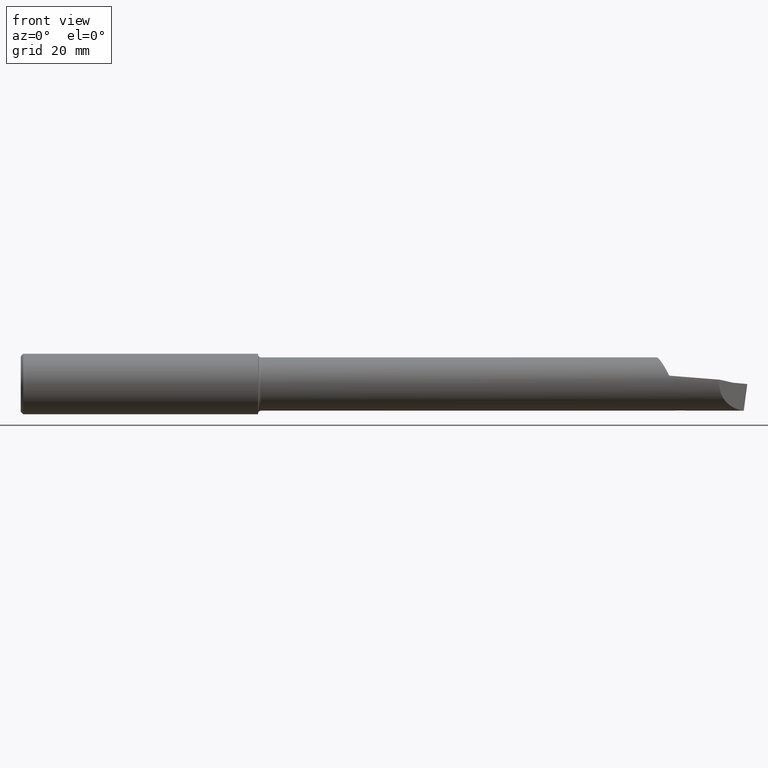
[diagram: clean part render]
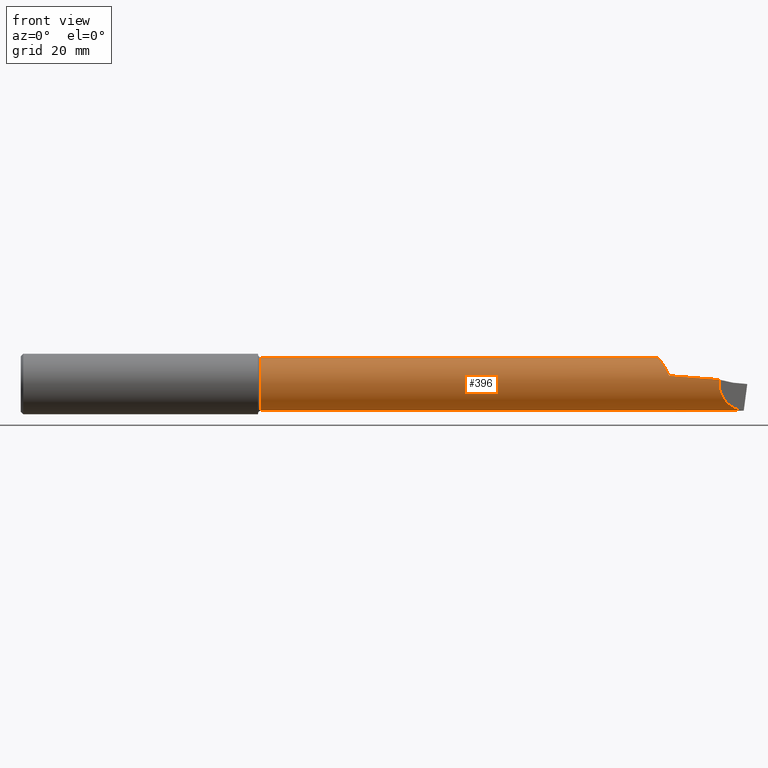
[diagram: same view with one face highlighted and labeled with its STEP entity id]
A machine part, front view. The second image highlights one B-rep face of the part: STEP entity #396.
In plain terms, the highlighted cylindrical surface (edge-blend (fillet) strip) has radius 5.588 mm, axis along (-1, -0, -0).
Its self-contained STEP definition (entity closure, byte-faithful):
#1 = EDGE_LOOP ( 'NONE', ( #563, #59, #292, #338, #590, #301, #452, #726, #315, #474 ) ) ;
#4 = EDGE_CURVE ( 'NONE', #483, #6, #501, .T. ) ;
#6 = VERTEX_POINT ( 'NONE', #314 ) ;
#10 = CARTESIAN_POINT ( 'NONE',  ( 5.771270714435558169, -0.2170814383730695907, 0.03571623039850650716 ) ) ;
#27 = CARTESIAN_POINT ( 'NONE',  ( 5.970822649411938521, -0.01752950339668959273, -0.2193005164395778750 ) ) ;
#30 = CARTESIAN_POINT ( 'NONE',  ( 5.272414265991219651, -0.07762841386096502871, 0.2061942163186600840 ) ) ;
#31 = VERTEX_POINT ( 'NONE', #497 ) ;
#59 = ORIENTED_EDGE ( 'NONE', *, *, #449, .T. ) ;
#63 = LINE ( 'NONE', #363, #92 ) ;
#68 = LINE ( 'NONE', #709, #451 ) ;
#69 = VECTOR ( 'NONE', #132, 39.37007874015748143 ) ;
#79 = VERTEX_POINT ( 'NONE', #610 ) ;
#84 = CARTESIAN_POINT ( 'NONE',  ( 5.970889738018302140, 0.000000000000000000, -0.2200000000000000566 ) ) ;
#88 = CARTESIAN_POINT ( 'NONE',  ( 5.310708596583527452, -0.1601832435777479635, 0.1525009408925927790 ) ) ;
#92 = VECTOR ( 'NONE', #328, 39.37007874015748143 ) ;
#123 = AXIS2_PLACEMENT_3D ( 'NONE', #594, #476, #473 ) ;
#132 = DIRECTION ( 'NONE',  ( 1.000000000000000000, -0.000000000000000000, -0.000000000000000000 ) ) ;
#184 = VERTEX_POINT ( 'NONE', #581 ) ;
#197 = DIRECTION ( 'NONE',  ( -1.000000000000000000, -0.000000000000000000, -0.000000000000000000 ) ) ;
#200 = CARTESIAN_POINT ( 'NONE',  ( 5.292376002346411035, -0.1261431576479110639, 0.1802597226350352022 ) ) ;
#202 = CARTESIAN_POINT ( 'NONE',  ( 5.356559098504063421, -0.2088777642239236787, 0.06906576061805669298 ) ) ;
#205 = CARTESIAN_POINT ( 'NONE',  ( 5.970822649411938521, -0.01752950339668959273, -0.2193005164395778750 ) ) ;
#209 = CARTESIAN_POINT ( 'NONE',  ( 5.301763750540529507, -0.1449087477148439662, 0.1665523849273789492 ) ) ;
#212 = CARTESIAN_POINT ( 'NONE',  ( 1.984525038226270466, 0.000000000000000000, 0.000000000000000000 ) ) ;
#223 = CARTESIAN_POINT ( 'NONE',  ( 5.410000000000000142, 2.694222958124177253E-17, -0.2200000000000000011 ) ) ;
#246 = CYLINDRICAL_SURFACE ( 'NONE', #123, 0.2200000000000000566 ) ;
#250 = FACE_OUTER_BOUND ( 'NONE', #1, .T. ) ;
#262 = EDGE_CURVE ( 'NONE', #31, #334, #480, .T. ) ;
#263 = CARTESIAN_POINT ( 'NONE',  ( 5.970838677816553641, -0.005850919593664028091, -0.2200000000000000011 ) ) ;
#265 = CARTESIAN_POINT ( 'NONE',  ( 5.291057892820146158, -0.1233858508182268526, 0.1821426667538900979 ) ) ;
#266 = CARTESIAN_POINT ( 'NONE',  ( 5.358974358974359475, -0.2089406661879938953, 0.06887523512059523512 ) ) ;
#271 = CARTESIAN_POINT ( 'NONE',  ( 5.289661220195152502, -0.1204269891560956207, 0.1841250165428706675 ) ) ;
#292 = ORIENTED_EDGE ( 'NONE', *, *, #319, .T. ) ;
#293 = CARTESIAN_POINT ( 'NONE',  ( 5.253048836201133831, -1.183062825525345383E-06, 0.2200124226379089887 ) ) ;
#295 = VERTEX_POINT ( 'NONE', #223 ) ;
#301 = ORIENTED_EDGE ( 'NONE', *, *, #506, .F. ) ;
#304 = DIRECTION ( 'NONE',  ( 0.000000000000000000, 0.000000000000000000, 1.000000000000000000 ) ) ;
#310 = CARTESIAN_POINT ( 'NONE',  ( 5.410000000000000142, 0.000000000000000000, 0.000000000000000000 ) ) ;
#314 = CARTESIAN_POINT ( 'NONE',  ( 5.356559098504063421, -0.2088777642239236787, 0.06906576061805669298 ) ) ;
#315 = ORIENTED_EDGE ( 'NONE', *, *, #442, .T. ) ;
#318 = CARTESIAN_POINT ( 'NONE',  ( 5.564429700643780841, -0.2143015012764733496, 0.05261254719292928622 ) ) ;
#319 = EDGE_CURVE ( 'NONE', #79, #31, #721, .T. ) ;
#320 = CARTESIAN_POINT ( 'NONE',  ( 5.291331261531611929, -0.1239598244847264774, 0.1817528458976670203 ) ) ;
#323 =( BOUNDED_CURVE ( )  B_SPLINE_CURVE ( 3, ( #378, #327, #722, #205 ),
 .UNSPECIFIED., .F., .T. ) 
 B_SPLINE_CURVE_WITH_KNOTS ( ( 4, 4 ),
 ( 6.120117067556848589, 7.774217519258910691 ),
 .UNSPECIFIED. ) 
 CURVE ( )  GEOMETRIC_REPRESENTATION_ITEM ( )  RATIONAL_B_SPLINE_CURVE ( ( 1.000000000000000000, 0.7846997011302683234, 0.7846997011302683234, 1.000000000000000000 ) ) 
 REPRESENTATION_ITEM ( '' )  );
#324 = CARTESIAN_POINT ( 'NONE',  ( 5.343568907379043331, -0.2004185357093110631, 0.09466616758537328702 ) ) ;
#327 = CARTESIAN_POINT ( 'NONE',  ( 5.748939529771278423, -0.2394126230373500863, -0.1000115783150170440 ) ) ;
#328 = DIRECTION ( 'NONE',  ( -1.000000000000000000, -0.000000000000000000, -0.000000000000000000 ) ) ;
#334 = VERTEX_POINT ( 'NONE', #428 ) ;
#338 = ORIENTED_EDGE ( 'NONE', *, *, #262, .T. ) ;
#363 = CARTESIAN_POINT ( 'NONE',  ( 0.000000000000000000, 2.694222958124177561E-17, -0.2200000000000000566 ) ) ;
#378 = CARTESIAN_POINT ( 'NONE',  ( 5.771270714435558169, -0.2170814383730695907, 0.03571623039850650716 ) ) ;
#382 = CARTESIAN_POINT ( 'NONE',  ( 5.286194494552781009, -0.1128910208792994335, 0.1889741111404006357 ) ) ;
#383 = VERTEX_POINT ( 'NONE', #546 ) ;
#387 = B_SPLINE_CURVE_WITH_KNOTS ( 'NONE', 3,
 ( #202, #324, #728, #88, #209, #495, #200, #320, #615, #265, #436, #555, #271, #382, #438, #668, #30, #561, #660, #493 ),
 .UNSPECIFIED., .F., .F.,
 ( 4, 2, 2, 1, 1, 2, 2, 1, 1, 2, 2, 4 ),
 ( 0.000000000000000000, 0.2319181769986998209, 0.4638363539973996419, 0.4928261261222369738, 0.4964498476378415015, 0.4982617083956438209, 0.5000735691534462513, 0.5073210121846650766, 0.5218158982471060581, 0.5797954424968704279, 0.6957545309964027203, 0.9276727079954699695 ),
 .UNSPECIFIED. ) ;
#396 = ADVANCED_FACE ( 'NONE', ( #250 ), #246, .T. ) ;
#401 =( BOUNDED_CURVE ( )  B_SPLINE_CURVE ( 3, ( #27, #609, #263, #84 ),
 .UNSPECIFIED., .F., .F. ) 
 B_SPLINE_CURVE_WITH_KNOTS ( ( 4, 4 ),
 ( 6.274373815428427648, 6.354137930144000634 ),
 .UNSPECIFIED. ) 
 CURVE ( )  GEOMETRIC_REPRESENTATION_ITEM ( )  RATIONAL_B_SPLINE_CURVE ( ( 1.000000000000000000, 0.9994698774393541152, 0.9994698774393541152, 1.000000000000000000 ) ) 
 REPRESENTATION_ITEM ( '' )  );
#428 = CARTESIAN_POINT ( 'NONE',  ( 5.970889738018302140, 0.000000000000000000, -0.2200000000000000566 ) ) ;
#434 = CARTESIAN_POINT ( 'NONE',  ( 5.595439364795532278, 2.134256245050205639E-18, -0.2200000000000000566 ) ) ;
#436 = CARTESIAN_POINT ( 'NONE',  ( 5.291026367974281719, -0.1233195885780081907, 0.1821875986796213653 ) ) ;
#438 = CARTESIAN_POINT ( 'NONE',  ( 5.283226719027450891, -0.1059187799789718248, 0.1929277633858645646 ) ) ;
#442 = EDGE_CURVE ( 'NONE', #669, #383, #68, .T. ) ;
#449 = EDGE_CURVE ( 'NONE', #295, #79, #596, .T. ) ;
#451 = VECTOR ( 'NONE', #197, 39.37007874015748143 ) ;
#452 = ORIENTED_EDGE ( 'NONE', *, *, #4, .T. ) ;
#473 = DIRECTION ( 'NONE',  ( 0.000000000000000000, 0.000000000000000000, 1.000000000000000000 ) ) ;
#474 = ORIENTED_EDGE ( 'NONE', *, *, #496, .F. ) ;
#476 = DIRECTION ( 'NONE',  ( -1.000000000000000000, -0.000000000000000000, -0.000000000000000000 ) ) ;
#477 = EDGE_CURVE ( 'NONE', #295, #184, #63, .T. ) ;
#480 = LINE ( 'NONE', #705, #69 ) ;
#483 = VERTEX_POINT ( 'NONE', #499 ) ;
#486 = EDGE_CURVE ( 'NONE', #6, #669, #387, .T. ) ;
#493 = CARTESIAN_POINT ( 'NONE',  ( 5.253048836201133831, -1.183062825525345383E-06, 0.2200124226379089887 ) ) ;
#495 = CARTESIAN_POINT ( 'NONE',  ( 5.293395547304614368, -0.1282223768002896391, 0.1787856457334581206 ) ) ;
#496 = EDGE_CURVE ( 'NONE', #184, #383, #734, .T. ) ;
#497 = CARTESIAN_POINT ( 'NONE',  ( 5.595439364795532278, 2.134256245050205639E-18, -0.2200000000000000566 ) ) ;
#499 = CARTESIAN_POINT ( 'NONE',  ( 5.771270714435558169, -0.2170814383730695907, 0.03571623039850650716 ) ) ;
#501 =( BOUNDED_CURVE ( )  B_SPLINE_CURVE ( 2, ( #10, #318, #266, #547, #718 ),
 .UNSPECIFIED., .F., .F. ) 
 B_SPLINE_CURVE_WITH_KNOTS ( ( 3, 2, 3 ),
 ( 0.1786485734947638737, 0.5000000000000000000, 0.5019619316750385529 ),
 .UNSPECIFIED. ) 
 CURVE ( )  GEOMETRIC_REPRESENTATION_ITEM ( )  RATIONAL_B_SPLINE_CURVE ( ( 0.9929648280793842430, 0.9916323561610862480, 0.9963010501997406898, 0.9962725466427000409, 0.9962442667737849700 ) ) 
 REPRESENTATION_ITEM ( '' )  );
#503 = DIRECTION ( 'NONE',  ( -1.000000000000000000, -0.000000000000000000, -0.000000000000000000 ) ) ;
#506 = EDGE_CURVE ( 'NONE', #483, #666, #323, .T. ) ;
#546 = CARTESIAN_POINT ( 'NONE',  ( 1.984525038226270466, 0.000000000000000000, 0.2200000000000000566 ) ) ;
#547 = CARTESIAN_POINT ( 'NONE',  ( 5.357725844419114480, -0.2089080893730916877, 0.06897406050240388609 ) ) ;
#551 = EDGE_CURVE ( 'NONE', #666, #334, #401, .T. ) ;
#555 = CARTESIAN_POINT ( 'NONE',  ( 5.290623232216534078, -0.1224700767580466365, 0.1827614645761349577 ) ) ;
#561 = CARTESIAN_POINT ( 'NONE',  ( 5.261697773686591084, -0.04351199093201792156, 0.2169691419821596634 ) ) ;
#563 = ORIENTED_EDGE ( 'NONE', *, *, #477, .F. ) ;
#581 = CARTESIAN_POINT ( 'NONE',  ( 1.984525038226270466, 2.694222958124177561E-17, -0.2200000000000000566 ) ) ;
#590 = ORIENTED_EDGE ( 'NONE', *, *, #551, .F. ) ;
#594 = CARTESIAN_POINT ( 'NONE',  ( 0.000000000000000000, 0.000000000000000000, 0.000000000000000000 ) ) ;
#596 = CIRCLE ( 'NONE', #752, 0.2200000000000000011 ) ;
#603 = CARTESIAN_POINT ( 'NONE',  ( 5.410000000000000142, -0.02232082031225495616, -0.2188647549985790752 ) ) ;
#609 = CARTESIAN_POINT ( 'NONE',  ( 5.970816303086416532, -0.01169718663061243211, -0.2197667151436271671 ) ) ;
#610 = CARTESIAN_POINT ( 'NONE',  ( 5.410000000000000142, -0.02232082031225495616, -0.2188647549985790752 ) ) ;
#615 = CARTESIAN_POINT ( 'NONE',  ( 5.291167129969539751, -0.1236153981034094074, 0.1819869571867500369 ) ) ;
#645 = CARTESIAN_POINT ( 'NONE',  ( 5.471819322562021526, -0.01495104440659961002, -0.2196163581689149769 ) ) ;
#655 = DIRECTION ( 'NONE',  ( -1.000000000000000000, -0.000000000000000000, -0.000000000000000000 ) ) ;
#660 = CARTESIAN_POINT ( 'NONE',  ( 5.256435488265876366, -0.02101578052564987212, 0.2199999835917510471 ) ) ;
#665 = DIRECTION ( 'NONE',  ( 0.000000000000000000, 0.000000000000000000, 1.000000000000000000 ) ) ;
#666 = VERTEX_POINT ( 'NONE', #749 ) ;
#668 = CARTESIAN_POINT ( 'NONE',  ( 5.276456940788357031, -0.08905058601311724442, 0.2015679351482878578 ) ) ;
#669 = VERTEX_POINT ( 'NONE', #293 ) ;
#701 = CARTESIAN_POINT ( 'NONE',  ( 5.533631329113467778, -0.007501773097099858310, -0.2200000000000000011 ) ) ;
#705 = CARTESIAN_POINT ( 'NONE',  ( 5.410000000000000142, 0.000000000000000000, -0.2200000000000000566 ) ) ;
#709 = CARTESIAN_POINT ( 'NONE',  ( 0.000000000000000000, 0.000000000000000000, 0.2200000000000000566 ) ) ;
#714 = AXIS2_PLACEMENT_3D ( 'NONE', #212, #503, #665 ) ;
#718 = CARTESIAN_POINT ( 'NONE',  ( 5.356559098504063421, -0.2088777642239236787, 0.06906576061805669298 ) ) ;
#721 = B_SPLINE_CURVE_WITH_KNOTS ( 'NONE', 3,
 ( #603, #645, #701, #434 ),
 .UNSPECIFIED., .F., .F.,
 ( 4, 4 ),
 ( 0.000000000000000000, 0.004744245821424695857 ),
 .UNSPECIFIED. ) ;
#722 = CARTESIAN_POINT ( 'NONE',  ( 5.833707386268462081, -0.1546447665401664839, -0.2083403850635360821 ) ) ;
#726 = ORIENTED_EDGE ( 'NONE', *, *, #486, .T. ) ;
#728 = CARTESIAN_POINT ( 'NONE',  ( 5.331611175002785252, -0.1879456397189687988, 0.1165832106559163139 ) ) ;
#734 = CIRCLE ( 'NONE', #714, 0.2200000000000000566 ) ;
#749 = CARTESIAN_POINT ( 'NONE',  ( 5.970822649411938521, -0.01752950339668959273, -0.2193005164395778750 ) ) ;
#752 = AXIS2_PLACEMENT_3D ( 'NONE', #310, #655, #304 ) ;